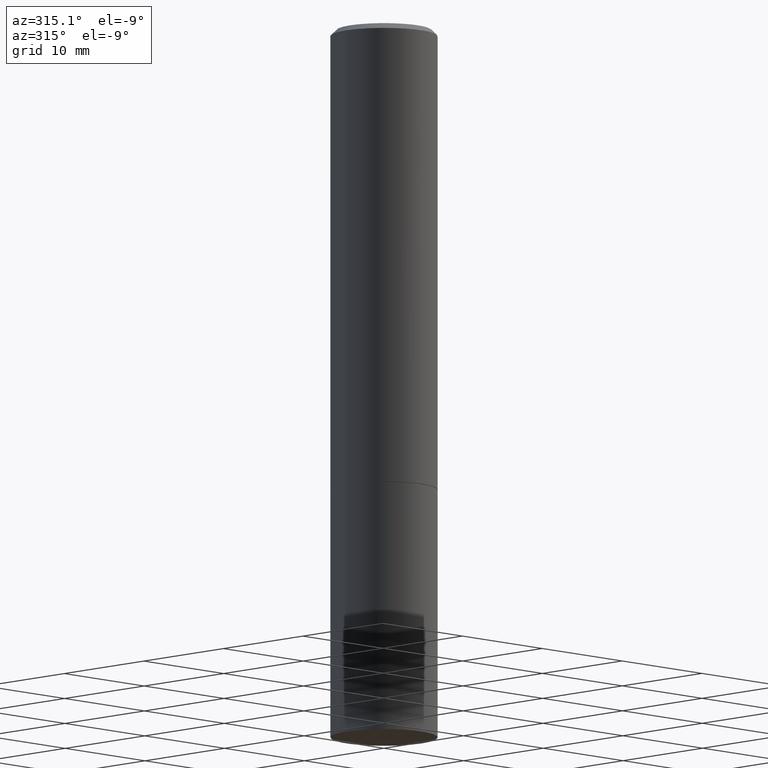
[diagram: clean part render]
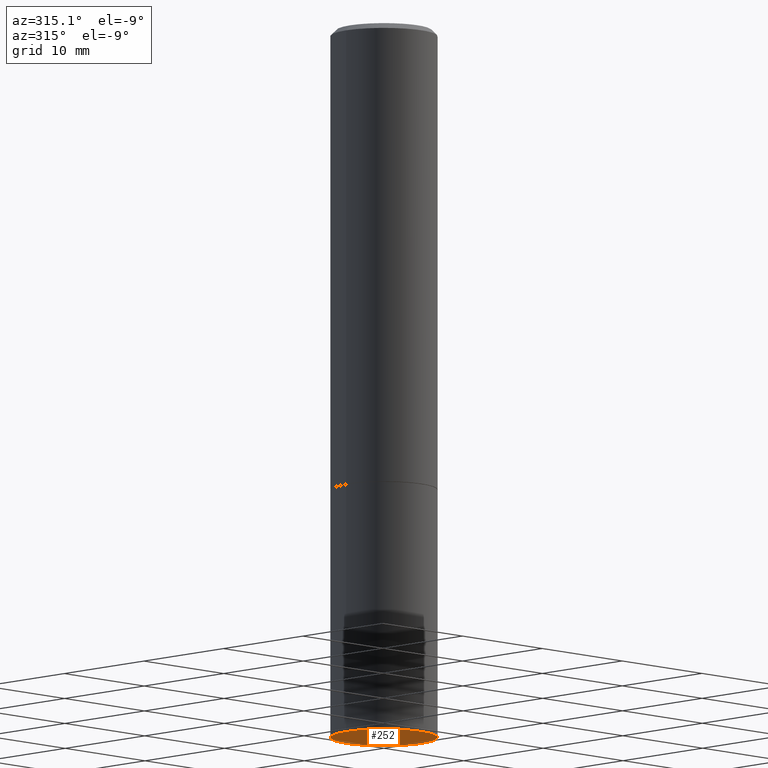
[diagram: same view with one face highlighted and labeled with its STEP entity id]
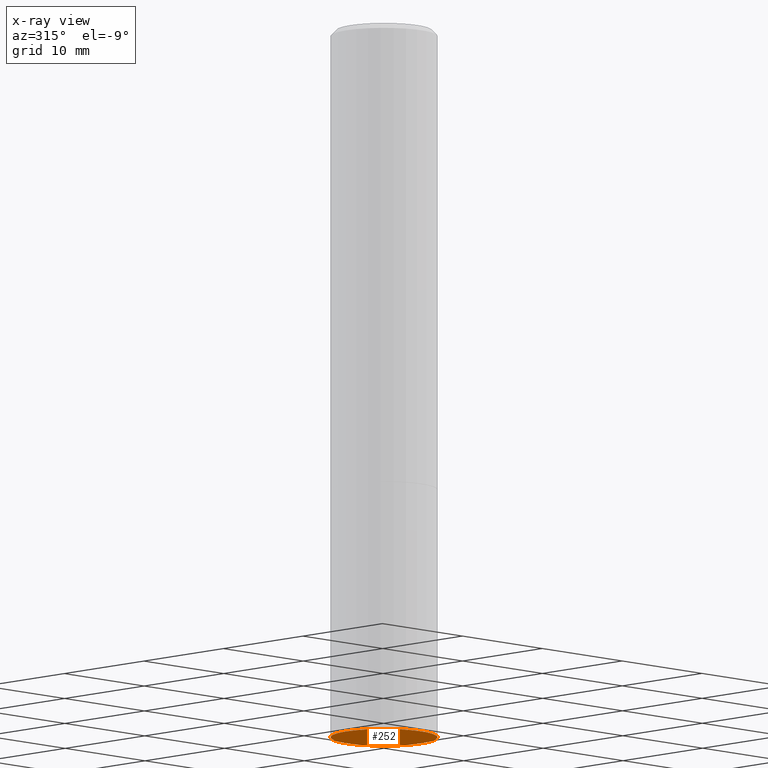
[diagram: x-ray of the same camera — body ghosted, the highlighted face saturated]
A machine part, auxiliary view. The second image highlights one B-rep face of the part: STEP entity #252.
The next image is the same camera in x-ray: the body ghosted, the highlighted face saturated — about 0% of this face is hidden behind the body in this view.
In plain terms, the highlighted planar face has unit normal (0, -0, -1).
Its self-contained STEP definition (entity closure, byte-faithful):
#20 = EDGE_CURVE ( 'NONE', #196, #281, #22, .T. ) ;
#22 = CIRCLE ( 'NONE', #206, 0.1875000000000000278 ) ;
#43 = FACE_OUTER_BOUND ( 'NONE', #104, .T. ) ;
#64 = PLANE ( 'NONE',  #84 ) ;
#79 = DIRECTION ( 'NONE',  ( -2.445468806185136597E-29, 3.491481338843145583E-15, 1.000000000000000000 ) ) ;
#80 = CARTESIAN_POINT ( 'NONE',  ( 6.113672015462842613E-29, -8.728703347107864943E-15, -2.500000000000000000 ) ) ;
#84 = AXIS2_PLACEMENT_3D ( 'NONE', #346, #169, #146 ) ;
#104 = EDGE_LOOP ( 'NONE', ( #237, #234 ) ) ;
#146 = DIRECTION ( 'NONE',  ( -1.000000000000000000, 6.982962677686265922E-15, -4.876176775795935793E-29 ) ) ;
#169 = DIRECTION ( 'NONE',  ( 2.438088387897960049E-29, -3.491481338843145188E-15, -1.000000000000000000 ) ) ;
#184 = DIRECTION ( 'NONE',  ( -2.445468806185136597E-29, 3.491481338843145583E-15, 1.000000000000000000 ) ) ;
#195 = EDGE_CURVE ( 'NONE', #281, #196, #289, .T. ) ;
#196 = VERTEX_POINT ( 'NONE', #308 ) ;
#204 = CARTESIAN_POINT ( 'NONE',  ( 6.113672015462842613E-29, -8.728703347107864943E-15, -2.500000000000000000 ) ) ;
#206 = AXIS2_PLACEMENT_3D ( 'NONE', #204, #79, #324 ) ;
#216 = DIRECTION ( 'NONE',  ( 1.000000000000000000, -6.982962677686266711E-15, 0.000000000000000000 ) ) ;
#225 = CARTESIAN_POINT ( 'NONE',  ( -0.1875000000000000278, -5.868912631813800729E-15, -2.500000000000000000 ) ) ;
#234 = ORIENTED_EDGE ( 'NONE', *, *, #195, .F. ) ;
#237 = ORIENTED_EDGE ( 'NONE', *, *, #20, .F. ) ;
#252 = ADVANCED_FACE ( 'NONE', ( #43 ), #64, .T. ) ;
#277 = AXIS2_PLACEMENT_3D ( 'NONE', #80, #184, #216 ) ;
#281 = VERTEX_POINT ( 'NONE', #225 ) ;
#289 = CIRCLE ( 'NONE', #277, 0.1875000000000000278 ) ;
#308 = CARTESIAN_POINT ( 'NONE',  ( 0.1875000000000000278, -1.003800884917403995E-14, -2.500000000000000000 ) ) ;
#324 = DIRECTION ( 'NONE',  ( 1.000000000000000000, -6.982962677686266711E-15, 0.000000000000000000 ) ) ;
#346 = CARTESIAN_POINT ( 'NONE',  ( 1.309305502066236145E-15, 0.1874999999999912847, -2.500000000000000444 ) ) ;